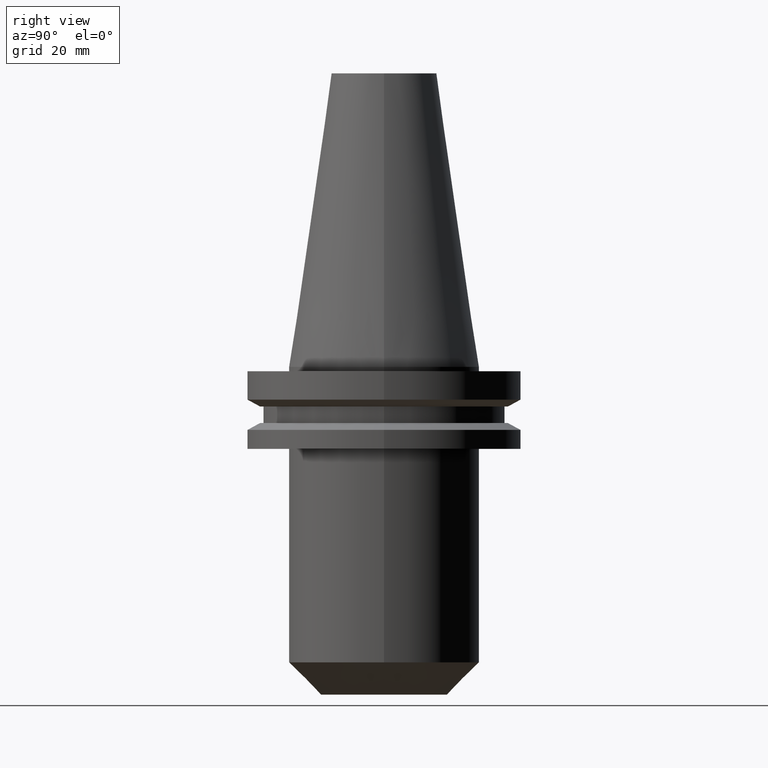
[diagram: clean part render]
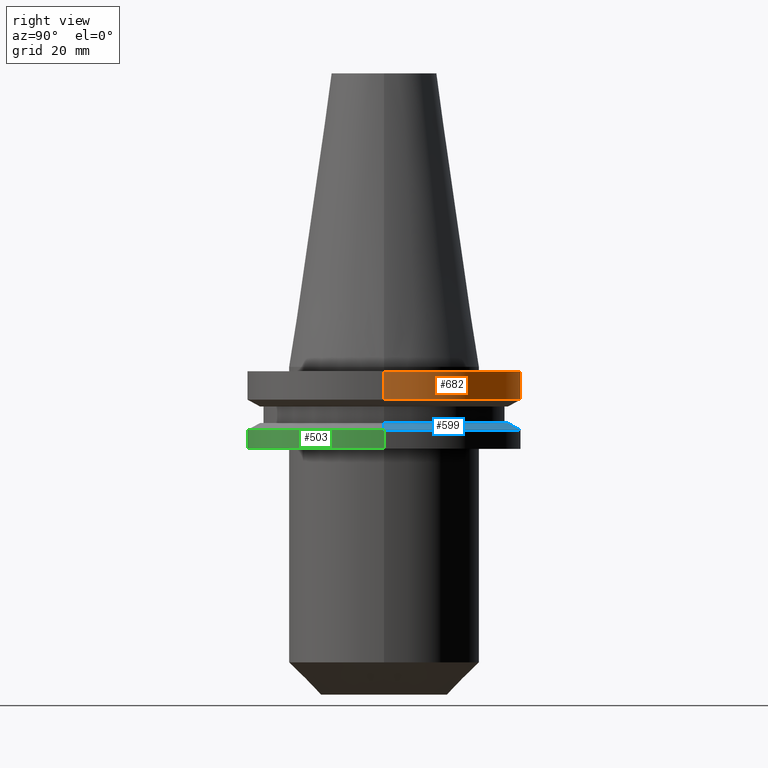
[diagram: same view with three faces highlighted in distinct colors, each labeled with its STEP entity id]
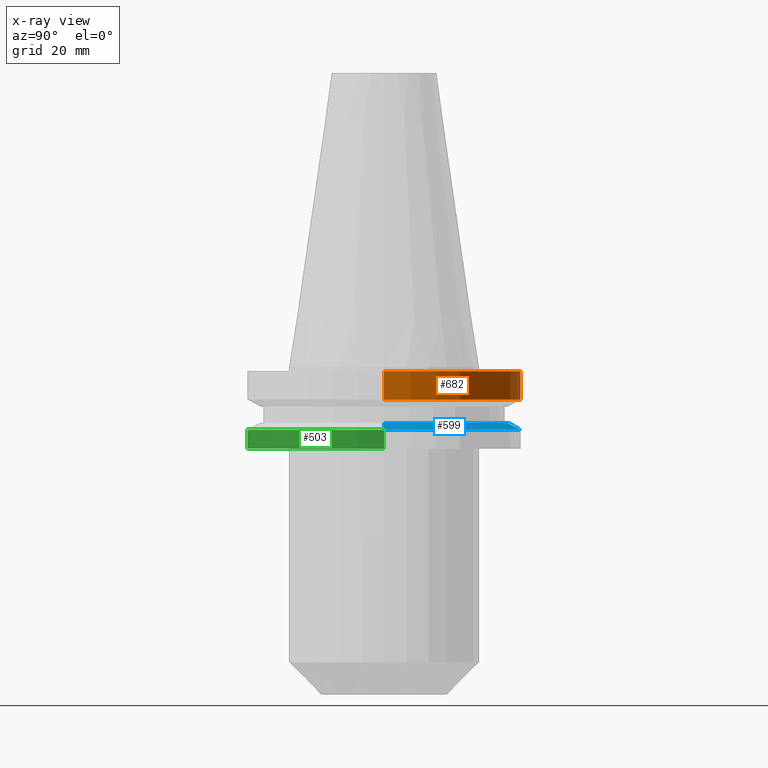
[diagram: x-ray of the same camera — body ghosted, the three highlighted faces saturated]
A machine part, right view with three faces highlighted in distinct colors.
The next image is the same camera in x-ray (body ghosted, the three faces saturated) — at least one of them is partly hidden behind the body in this view.
Their STEP definitions:

[orange] entity #682 — the highlighted cylindrical surface (partial cylindrical patch) has radius 31.75 mm, axis along (-0, -0, 1).
#1 = CARTESIAN_POINT ( 'NONE',  ( -31.75000000000000000, 3.888253587292846476E-15, -1.000000000000000888 ) ) ;
#15 = EDGE_LOOP ( 'NONE', ( #527, #529, #698, #362 ) ) ;
#27 = LINE ( 'NONE', #39, #32 ) ;
#32 = VECTOR ( 'NONE', #692, 1000.000000000000000 ) ;
#39 = CARTESIAN_POINT ( 'NONE',  ( -31.75000000000000000, 3.888253587292846476E-15, 68.25000000000000000 ) ) ;
#90 = VERTEX_POINT ( 'NONE', #570 ) ;
#101 = CYLINDRICAL_SURFACE ( 'NONE', #661, 31.75000000000000000 ) ;
#117 = CARTESIAN_POINT ( 'NONE',  ( 0.000000000000000000, 0.000000000000000000, -7.605276606597335842 ) ) ;
#137 = EDGE_CURVE ( 'NONE', #492, #221, #494, .T. ) ;
#156 = DIRECTION ( 'NONE',  ( -0.000000000000000000, -0.000000000000000000, 1.000000000000000000 ) ) ;
#186 = CARTESIAN_POINT ( 'NONE',  ( -31.75000000000000000, 3.888253587292846476E-15, -7.605276606597335842 ) ) ;
#199 = EDGE_CURVE ( 'NONE', #90, #267, #620, .T. ) ;
#215 = VECTOR ( 'NONE', #496, 1000.000000000000000 ) ;
#221 = VERTEX_POINT ( 'NONE', #1 ) ;
#259 = CARTESIAN_POINT ( 'NONE',  ( 0.000000000000000000, 0.000000000000000000, -1.000000000000000888 ) ) ;
#267 = VERTEX_POINT ( 'NONE', #186 ) ;
#271 = CARTESIAN_POINT ( 'NONE',  ( 0.000000000000000000, 0.000000000000000000, 68.25000000000000000 ) ) ;
#362 = ORIENTED_EDGE ( 'NONE', *, *, #463, .F. ) ;
#394 = DIRECTION ( 'NONE',  ( -0.000000000000000000, -0.000000000000000000, 1.000000000000000000 ) ) ;
#396 = DIRECTION ( 'NONE',  ( 1.000000000000000000, 0.000000000000000000, 0.000000000000000000 ) ) ;
#463 = EDGE_CURVE ( 'NONE', #90, #492, #725, .T. ) ;
#492 = VERTEX_POINT ( 'NONE', #559 ) ;
#494 = CIRCLE ( 'NONE', #583, 31.75000000000000000 ) ;
#496 = DIRECTION ( 'NONE',  ( -0.000000000000000000, -0.000000000000000000, 1.000000000000000000 ) ) ;
#518 = DIRECTION ( 'NONE',  ( 1.000000000000000000, 0.000000000000000000, 0.000000000000000000 ) ) ;
#527 = ORIENTED_EDGE ( 'NONE', *, *, #199, .T. ) ;
#529 = ORIENTED_EDGE ( 'NONE', *, *, #680, .T. ) ;
#559 = CARTESIAN_POINT ( 'NONE',  ( 31.75000000000000000, 0.000000000000000000, -1.000000000000000888 ) ) ;
#570 = CARTESIAN_POINT ( 'NONE',  ( 31.75000000000000000, 0.000000000000000000, -7.605276606597335842 ) ) ;
#576 = FACE_OUTER_BOUND ( 'NONE', #15, .T. ) ;
#583 = AXIS2_PLACEMENT_3D ( 'NONE', #259, #156, #396 ) ;
#601 = DIRECTION ( 'NONE',  ( 1.000000000000000000, 0.000000000000000000, 0.000000000000000000 ) ) ;
#614 = CARTESIAN_POINT ( 'NONE',  ( 31.75000000000000000, 0.000000000000000000, 68.25000000000000000 ) ) ;
#620 = CIRCLE ( 'NONE', #721, 31.75000000000000000 ) ;
#661 = AXIS2_PLACEMENT_3D ( 'NONE', #271, #394, #518 ) ;
#666 = DIRECTION ( 'NONE',  ( -0.000000000000000000, -0.000000000000000000, 1.000000000000000000 ) ) ;
#680 = EDGE_CURVE ( 'NONE', #267, #221, #27, .T. ) ;
#682 = ADVANCED_FACE ( 'NONE', ( #576 ), #101, .T. ) ;
#692 = DIRECTION ( 'NONE',  ( -0.000000000000000000, -0.000000000000000000, 1.000000000000000000 ) ) ;
#698 = ORIENTED_EDGE ( 'NONE', *, *, #137, .F. ) ;
#721 = AXIS2_PLACEMENT_3D ( 'NONE', #117, #666, #601 ) ;
#725 = LINE ( 'NONE', #614, #215 ) ;

[blue] entity #599 — the highlighted conical surface has half-angle 60 deg.
#22 = DIRECTION ( 'NONE',  ( 0.8660254037844387076, 1.060575238724906915E-16, -0.4999999999999998890 ) ) ;
#36 = VERTEX_POINT ( 'NONE', #687 ) ;
#64 = DIRECTION ( 'NONE',  ( 1.000000000000000000, 0.000000000000000000, 0.000000000000000000 ) ) ;
#70 = EDGE_CURVE ( 'NONE', #619, #763, #386, .T. ) ;
#73 = DIRECTION ( 'NONE',  ( 0.000000000000000000, 0.000000000000000000, -1.000000000000000000 ) ) ;
#77 = VERTEX_POINT ( 'NONE', #436 ) ;
#128 = EDGE_LOOP ( 'NONE', ( #408, #688, #701, #178 ) ) ;
#130 = FACE_OUTER_BOUND ( 'NONE', #128, .T. ) ;
#175 = DIRECTION ( 'NONE',  ( -0.000000000000000000, -0.000000000000000000, 1.000000000000000000 ) ) ;
#176 = CONICAL_SURFACE ( 'NONE', #622, 31.75000000000000000, 1.047197551196597853 ) ;
#178 = ORIENTED_EDGE ( 'NONE', *, *, #726, .F. ) ;
#257 = CARTESIAN_POINT ( 'NONE',  ( 28.97919780457008088, 3.718590885307660666E-15, -13.05499999999999794 ) ) ;
#275 = CARTESIAN_POINT ( 'NONE',  ( 31.75000000000000000, 0.000000000000000000, -14.65472339340266572 ) ) ;
#292 = CARTESIAN_POINT ( 'NONE',  ( 0.000000000000000000, 0.000000000000000000, -13.05499999999999794 ) ) ;
#342 = EDGE_CURVE ( 'NONE', #619, #77, #634, .T. ) ;
#347 = DIRECTION ( 'NONE',  ( -0.000000000000000000, -0.000000000000000000, 1.000000000000000000 ) ) ;
#352 = EDGE_CURVE ( 'NONE', #763, #36, #355, .T. ) ;
#355 = CIRCLE ( 'NONE', #693, 31.75000000000000000 ) ;
#386 = LINE ( 'NONE', #629, #607 ) ;
#408 = ORIENTED_EDGE ( 'NONE', *, *, #342, .F. ) ;
#436 = CARTESIAN_POINT ( 'NONE',  ( -28.97919780457008088, 0.000000000000000000, -13.05499999999999794 ) ) ;
#538 = DIRECTION ( 'NONE',  ( 1.000000000000000000, 0.000000000000000000, 0.000000000000000000 ) ) ;
#549 = DIRECTION ( 'NONE',  ( -1.000000000000000000, 0.000000000000000000, 0.000000000000000000 ) ) ;
#578 = DIRECTION ( 'NONE',  ( -0.8660254037844387076, 0.000000000000000000, -0.4999999999999998890 ) ) ;
#599 = ADVANCED_FACE ( 'NONE', ( #130 ), #176, .T. ) ;
#607 = VECTOR ( 'NONE', #22, 1000.000000000000000 ) ;
#608 = AXIS2_PLACEMENT_3D ( 'NONE', #292, #175, #538 ) ;
#611 = CARTESIAN_POINT ( 'NONE',  ( 0.000000000000000000, 0.000000000000000000, -14.65472339340266572 ) ) ;
#619 = VERTEX_POINT ( 'NONE', #257 ) ;
#622 = AXIS2_PLACEMENT_3D ( 'NONE', #611, #73, #549 ) ;
#629 = CARTESIAN_POINT ( 'NONE',  ( 31.75000000000000000, 3.888253587292846476E-15, -14.65472339340266572 ) ) ;
#633 = LINE ( 'NONE', #686, #672 ) ;
#634 = CIRCLE ( 'NONE', #608, 28.97919780457008088 ) ;
#643 = CARTESIAN_POINT ( 'NONE',  ( 0.000000000000000000, 0.000000000000000000, -14.65472339340266572 ) ) ;
#672 = VECTOR ( 'NONE', #578, 1000.000000000000000 ) ;
#686 = CARTESIAN_POINT ( 'NONE',  ( -31.75000000000000000, 0.000000000000000000, -14.65472339340266572 ) ) ;
#687 = CARTESIAN_POINT ( 'NONE',  ( -31.75000000000000000, 3.888253587292846476E-15, -14.65472339340266572 ) ) ;
#688 = ORIENTED_EDGE ( 'NONE', *, *, #70, .T. ) ;
#693 = AXIS2_PLACEMENT_3D ( 'NONE', #643, #347, #64 ) ;
#701 = ORIENTED_EDGE ( 'NONE', *, *, #352, .T. ) ;
#726 = EDGE_CURVE ( 'NONE', #77, #36, #633, .T. ) ;
#763 = VERTEX_POINT ( 'NONE', #275 ) ;

[green] entity #503 — the highlighted cylindrical surface (partial cylindrical patch) has radius 31.75 mm, axis along (-0, -0, 1).
#2 = EDGE_LOOP ( 'NONE', ( #476, #58, #567, #236 ) ) ;
#18 = VECTOR ( 'NONE', #47, 1000.000000000000000 ) ;
#36 = VERTEX_POINT ( 'NONE', #687 ) ;
#47 = DIRECTION ( 'NONE',  ( -0.000000000000000000, -0.000000000000000000, 1.000000000000000000 ) ) ;
#58 = ORIENTED_EDGE ( 'NONE', *, *, #444, .T. ) ;
#116 = CIRCLE ( 'NONE', #392, 31.74999999999999289 ) ;
#126 = CARTESIAN_POINT ( 'NONE',  ( 0.000000000000000000, 0.000000000000000000, -14.65472339340266572 ) ) ;
#180 = CYLINDRICAL_SURFACE ( 'NONE', #253, 31.75000000000000000 ) ;
#226 = LINE ( 'NONE', #703, #695 ) ;
#236 = ORIENTED_EDGE ( 'NONE', *, *, #564, .F. ) ;
#253 = AXIS2_PLACEMENT_3D ( 'NONE', #738, #729, #665 ) ;
#254 = FACE_OUTER_BOUND ( 'NONE', #2, .T. ) ;
#275 = CARTESIAN_POINT ( 'NONE',  ( 31.75000000000000000, 0.000000000000000000, -14.65472339340266572 ) ) ;
#279 = CARTESIAN_POINT ( 'NONE',  ( 0.000000000000000000, 0.000000000000000000, -19.04999999999999716 ) ) ;
#284 = LINE ( 'NONE', #586, #18 ) ;
#301 = DIRECTION ( 'NONE',  ( 1.000000000000000000, 0.000000000000000000, 0.000000000000000000 ) ) ;
#309 = VERTEX_POINT ( 'NONE', #478 ) ;
#344 = EDGE_CURVE ( 'NONE', #397, #763, #226, .T. ) ;
#381 = DIRECTION ( 'NONE',  ( -0.000000000000000000, -0.000000000000000000, 1.000000000000000000 ) ) ;
#392 = AXIS2_PLACEMENT_3D ( 'NONE', #279, #650, #590 ) ;
#397 = VERTEX_POINT ( 'NONE', #711 ) ;
#398 = EDGE_CURVE ( 'NONE', #309, #36, #284, .T. ) ;
#444 = EDGE_CURVE ( 'NONE', #309, #397, #116, .T. ) ;
#469 = AXIS2_PLACEMENT_3D ( 'NONE', #126, #381, #301 ) ;
#476 = ORIENTED_EDGE ( 'NONE', *, *, #398, .F. ) ;
#478 = CARTESIAN_POINT ( 'NONE',  ( -31.74999999999999289, 3.888253587292845687E-15, -19.04999999999999716 ) ) ;
#503 = ADVANCED_FACE ( 'NONE', ( #254 ), #180, .T. ) ;
#564 = EDGE_CURVE ( 'NONE', #36, #763, #737, .T. ) ;
#567 = ORIENTED_EDGE ( 'NONE', *, *, #344, .T. ) ;
#586 = CARTESIAN_POINT ( 'NONE',  ( -31.75000000000000000, 3.888253587292846476E-15, 68.25000000000000000 ) ) ;
#590 = DIRECTION ( 'NONE',  ( 1.000000000000000000, 0.000000000000000000, 0.000000000000000000 ) ) ;
#650 = DIRECTION ( 'NONE',  ( -0.000000000000000000, -0.000000000000000000, 1.000000000000000000 ) ) ;
#665 = DIRECTION ( 'NONE',  ( 1.000000000000000000, 0.000000000000000000, 0.000000000000000000 ) ) ;
#687 = CARTESIAN_POINT ( 'NONE',  ( -31.75000000000000000, 3.888253587292846476E-15, -14.65472339340266572 ) ) ;
#695 = VECTOR ( 'NONE', #707, 1000.000000000000000 ) ;
#703 = CARTESIAN_POINT ( 'NONE',  ( 31.75000000000000000, 0.000000000000000000, 68.25000000000000000 ) ) ;
#707 = DIRECTION ( 'NONE',  ( -0.000000000000000000, -0.000000000000000000, 1.000000000000000000 ) ) ;
#711 = CARTESIAN_POINT ( 'NONE',  ( 31.74999999999999289, 0.000000000000000000, -19.04999999999999716 ) ) ;
#729 = DIRECTION ( 'NONE',  ( -0.000000000000000000, -0.000000000000000000, 1.000000000000000000 ) ) ;
#737 = CIRCLE ( 'NONE', #469, 31.75000000000000000 ) ;
#738 = CARTESIAN_POINT ( 'NONE',  ( 0.000000000000000000, 0.000000000000000000, 68.25000000000000000 ) ) ;
#763 = VERTEX_POINT ( 'NONE', #275 ) ;